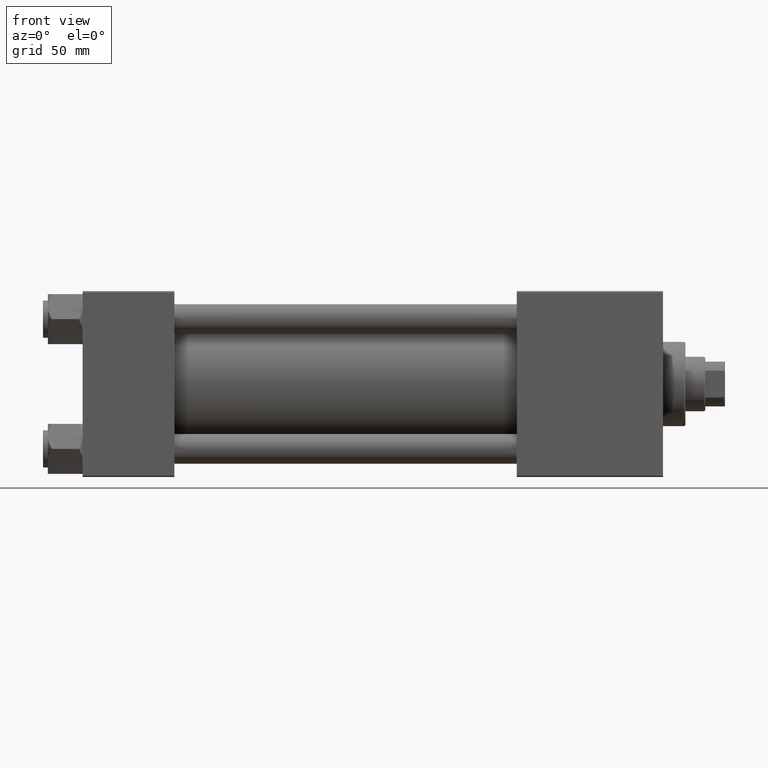
[diagram: clean part render]
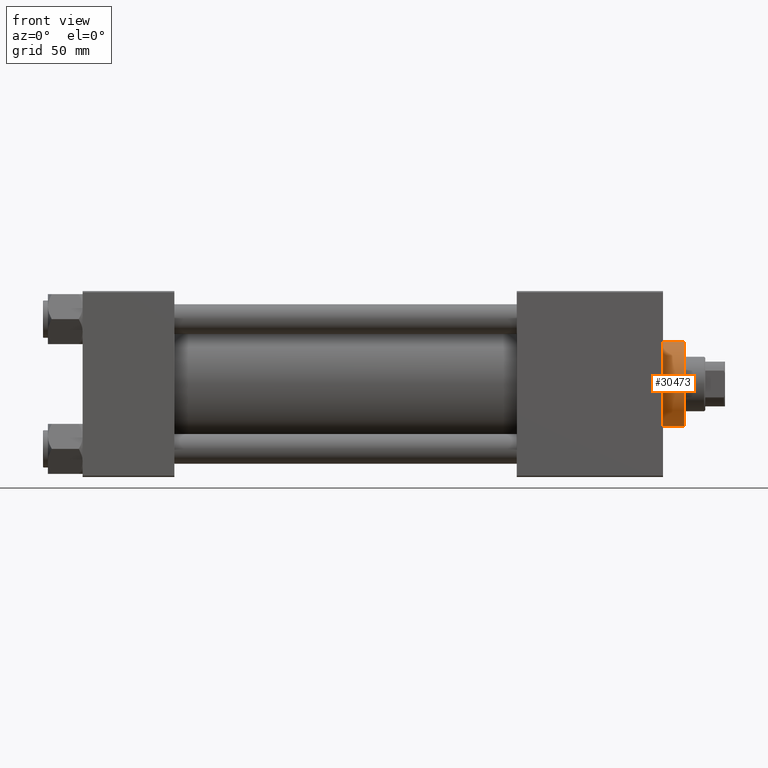
[diagram: same view with one face highlighted and labeled with its STEP entity id]
A machine part, front view. The second image highlights one B-rep face of the part: STEP entity #30473.
In plain terms, the highlighted cylindrical surface (partial cylindrical patch) has radius 17 mm, axis along (-1, -0, 0).
Its self-contained STEP definition (entity closure, byte-faithful):
#287 = CARTESIAN_POINT ( 'NONE',  ( 17.00000000000000000, 2.081899558550500280E-15, 28.69999999999999929 ) ) ;
#1288 = CARTESIAN_POINT ( 'NONE',  ( 0.000000000000000000, 0.000000000000000000, 28.69999999999999929 ) ) ;
#2938 = VERTEX_POINT ( 'NONE', #287 ) ;
#3227 = CARTESIAN_POINT ( 'NONE',  ( -17.00000000000000000, 0.000000000000000000, 37.19999999999999574 ) ) ;
#4677 = CARTESIAN_POINT ( 'NONE',  ( -17.00000000000000000, 0.000000000000000000, 28.69999999999999929 ) ) ;
#5667 = VECTOR ( 'NONE', #30057, 1000.000000000000000 ) ;
#6268 = EDGE_CURVE ( 'NONE', #23457, #11171, #18640, .T. ) ;
#6661 = EDGE_CURVE ( 'NONE', #11171, #2938, #36054, .T. ) ;
#7052 = CARTESIAN_POINT ( 'NONE',  ( 0.000000000000000000, 0.000000000000000000, 37.19999999999999574 ) ) ;
#7904 = DIRECTION ( 'NONE',  ( 1.000000000000000000, 0.000000000000000000, 0.000000000000000000 ) ) ;
#10888 = FACE_OUTER_BOUND ( 'NONE', #10990, .T. ) ;
#10990 = EDGE_LOOP ( 'NONE', ( #42652, #23260, #22598, #38702 ) ) ;
#11171 = VERTEX_POINT ( 'NONE', #4677 ) ;
#12272 = VECTOR ( 'NONE', #46386, 1000.000000000000000 ) ;
#14586 = CARTESIAN_POINT ( 'NONE',  ( -17.00000000000000000, 0.000000000000000000, 37.69999999999999574 ) ) ;
#18640 = LINE ( 'NONE', #14586, #5667 ) ;
#19279 = CARTESIAN_POINT ( 'NONE',  ( 17.00000000000000000, 2.081899558550500280E-15, 37.19999999999999574 ) ) ;
#21857 = CIRCLE ( 'NONE', #33190, 17.00000000000000000 ) ;
#22598 = ORIENTED_EDGE ( 'NONE', *, *, #6268, .T. ) ;
#23260 = ORIENTED_EDGE ( 'NONE', *, *, #47853, .T. ) ;
#23457 = VERTEX_POINT ( 'NONE', #3227 ) ;
#25379 = CYLINDRICAL_SURFACE ( 'NONE', #43180, 17.00000000000000000 ) ;
#26773 = EDGE_CURVE ( 'NONE', #48679, #2938, #41827, .T. ) ;
#30057 = DIRECTION ( 'NONE',  ( -0.000000000000000000, -0.000000000000000000, -1.000000000000000000 ) ) ;
#30473 = ADVANCED_FACE ( 'NONE', ( #10888 ), #25379, .T. ) ;
#30884 = CARTESIAN_POINT ( 'NONE',  ( 17.00000000000000000, 2.081899558550500280E-15, 37.69999999999999574 ) ) ;
#32976 = CARTESIAN_POINT ( 'NONE',  ( 0.000000000000000000, 0.000000000000000000, 37.69999999999999574 ) ) ;
#33190 = AXIS2_PLACEMENT_3D ( 'NONE', #7052, #44644, #33699 ) ;
#33699 = DIRECTION ( 'NONE',  ( 1.000000000000000000, 0.000000000000000000, 0.000000000000000000 ) ) ;
#36054 = CIRCLE ( 'NONE', #45802, 17.00000000000000000 ) ;
#38702 = ORIENTED_EDGE ( 'NONE', *, *, #6661, .T. ) ;
#39370 = DIRECTION ( 'NONE',  ( 0.000000000000000000, 0.000000000000000000, 1.000000000000000000 ) ) ;
#41827 = LINE ( 'NONE', #30884, #12272 ) ;
#41850 = DIRECTION ( 'NONE',  ( -0.000000000000000000, -0.000000000000000000, -1.000000000000000000 ) ) ;
#42652 = ORIENTED_EDGE ( 'NONE', *, *, #26773, .F. ) ;
#43180 = AXIS2_PLACEMENT_3D ( 'NONE', #32976, #41850, #44924 ) ;
#44644 = DIRECTION ( 'NONE',  ( 0.000000000000000000, 0.000000000000000000, -1.000000000000000000 ) ) ;
#44924 = DIRECTION ( 'NONE',  ( -1.000000000000000000, 0.000000000000000000, 0.000000000000000000 ) ) ;
#45802 = AXIS2_PLACEMENT_3D ( 'NONE', #1288, #39370, #7904 ) ;
#46386 = DIRECTION ( 'NONE',  ( -0.000000000000000000, -0.000000000000000000, -1.000000000000000000 ) ) ;
#47853 = EDGE_CURVE ( 'NONE', #48679, #23457, #21857, .T. ) ;
#48679 = VERTEX_POINT ( 'NONE', #19279 ) ;